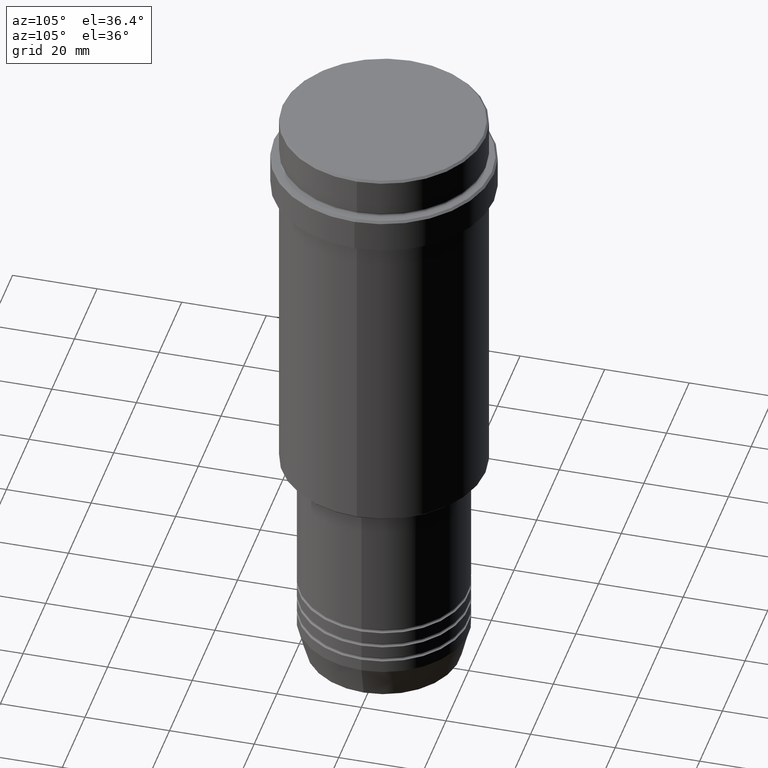
[diagram: clean part render]
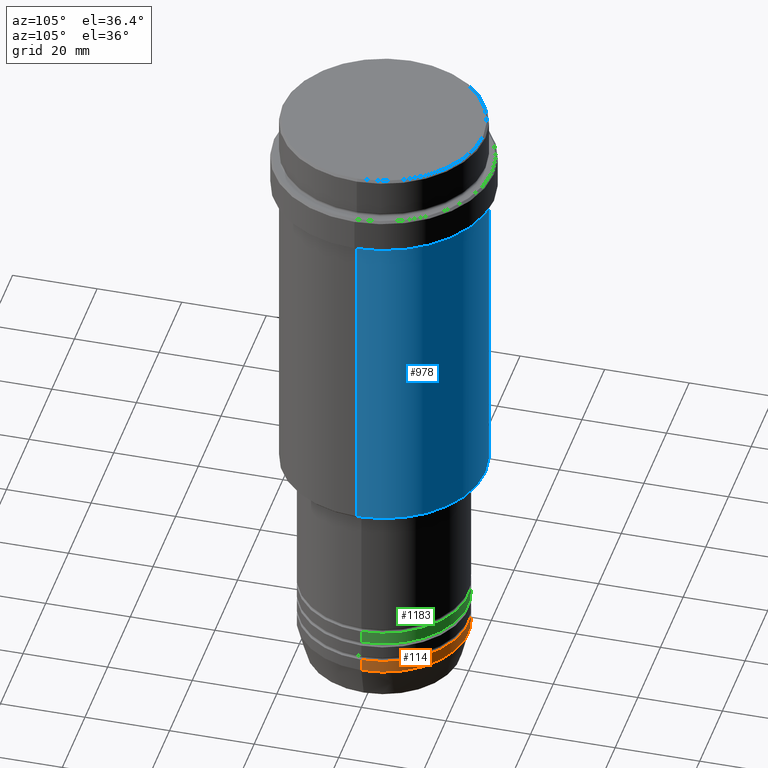
[diagram: same view with three faces highlighted in distinct colors, each labeled with its STEP entity id]
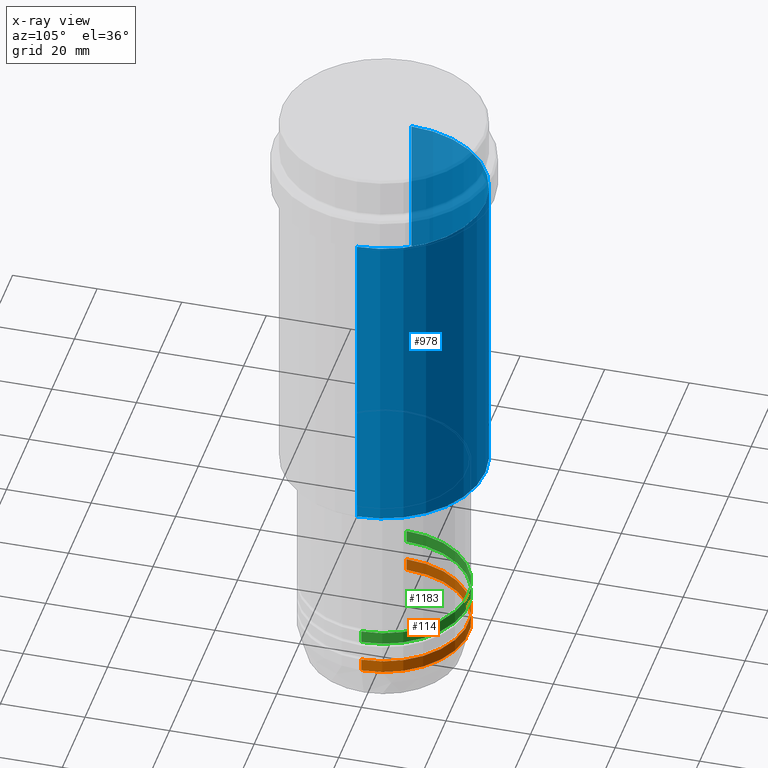
[diagram: x-ray of the same camera — body ghosted, the three highlighted faces saturated]
A machine part, auxiliary view with three faces highlighted in distinct colors.
The next image is the same camera in x-ray (body ghosted, the three faces saturated) — at least one of them is partly hidden behind the body in this view.
Their STEP definitions:

[orange] entity #114 — the highlighted cylindrical surface (partial cylindrical patch) has radius 20 mm, axis along (-0, -0, 1).
#63 = FACE_OUTER_BOUND ( 'NONE', #511, .T. ) ;
#97 = DIRECTION ( 'NONE',  ( 1.000000000000000000, 0.000000000000000000, 0.000000000000000000 ) ) ;
#114 = ADVANCED_FACE ( 'NONE', ( #63 ), #905, .T. ) ;
#163 = ORIENTED_EDGE ( 'NONE', *, *, #1003, .F. ) ;
#202 = AXIS2_PLACEMENT_3D ( 'NONE', #1005, #234, #443 ) ;
#234 = DIRECTION ( 'NONE',  ( -0.000000000000000000, -0.000000000000000000, 1.000000000000000000 ) ) ;
#248 = VECTOR ( 'NONE', #1225, 1000.000000000000000 ) ;
#277 = CARTESIAN_POINT ( 'NONE',  ( -20.00000000000000000, 2.449293598294706513E-15, 0.000000000000000000 ) ) ;
#280 = CARTESIAN_POINT ( 'NONE',  ( 0.000000000000000000, 0.000000000000000000, 0.000000000000000000 ) ) ;
#287 = VERTEX_POINT ( 'NONE', #1355 ) ;
#300 = DIRECTION ( 'NONE',  ( -0.000000000000000000, -0.000000000000000000, 1.000000000000000000 ) ) ;
#358 = VECTOR ( 'NONE', #300, 1000.000000000000000 ) ;
#418 = ORIENTED_EDGE ( 'NONE', *, *, #1098, .T. ) ;
#443 = DIRECTION ( 'NONE',  ( 1.000000000000000000, 0.000000000000000000, 0.000000000000000000 ) ) ;
#453 = AXIS2_PLACEMENT_3D ( 'NONE', #280, #592, #706 ) ;
#456 = CARTESIAN_POINT ( 'NONE',  ( -20.00000000000000000, 2.449293598294706513E-15, -139.0000000000000000 ) ) ;
#466 = VERTEX_POINT ( 'NONE', #725 ) ;
#511 = EDGE_LOOP ( 'NONE', ( #857, #418, #1000, #163 ) ) ;
#592 = DIRECTION ( 'NONE',  ( -0.000000000000000000, -0.000000000000000000, 1.000000000000000000 ) ) ;
#593 = VERTEX_POINT ( 'NONE', #456 ) ;
#706 = DIRECTION ( 'NONE',  ( 1.000000000000000000, 0.000000000000000000, 0.000000000000000000 ) ) ;
#725 = CARTESIAN_POINT ( 'NONE',  ( 20.00000000000000000, 0.000000000000000000, -142.0000000000000284 ) ) ;
#762 = DIRECTION ( 'NONE',  ( -0.000000000000000000, -0.000000000000000000, 1.000000000000000000 ) ) ;
#786 = CIRCLE ( 'NONE', #1321, 20.00000000000000000 ) ;
#857 = ORIENTED_EDGE ( 'NONE', *, *, #1401, .T. ) ;
#888 = LINE ( 'NONE', #1349, #248 ) ;
#905 = CYLINDRICAL_SURFACE ( 'NONE', #453, 20.00000000000000000 ) ;
#970 = EDGE_CURVE ( 'NONE', #287, #593, #786, .T. ) ;
#992 = CIRCLE ( 'NONE', #202, 20.00000000000000000 ) ;
#1000 = ORIENTED_EDGE ( 'NONE', *, *, #970, .F. ) ;
#1003 = EDGE_CURVE ( 'NONE', #466, #287, #888, .T. ) ;
#1005 = CARTESIAN_POINT ( 'NONE',  ( 0.000000000000000000, 0.000000000000000000, -142.0000000000000284 ) ) ;
#1098 = EDGE_CURVE ( 'NONE', #1107, #593, #1158, .T. ) ;
#1107 = VERTEX_POINT ( 'NONE', #1142 ) ;
#1142 = CARTESIAN_POINT ( 'NONE',  ( -20.00000000000000000, 2.449293598294706513E-15, -142.0000000000000284 ) ) ;
#1158 = LINE ( 'NONE', #277, #358 ) ;
#1197 = CARTESIAN_POINT ( 'NONE',  ( 0.000000000000000000, 0.000000000000000000, -139.0000000000000000 ) ) ;
#1225 = DIRECTION ( 'NONE',  ( -0.000000000000000000, -0.000000000000000000, 1.000000000000000000 ) ) ;
#1321 = AXIS2_PLACEMENT_3D ( 'NONE', #1197, #762, #97 ) ;
#1349 = CARTESIAN_POINT ( 'NONE',  ( 20.00000000000000000, 0.000000000000000000, 0.000000000000000000 ) ) ;
#1355 = CARTESIAN_POINT ( 'NONE',  ( 20.00000000000000000, 0.000000000000000000, -139.0000000000000000 ) ) ;
#1401 = EDGE_CURVE ( 'NONE', #466, #1107, #992, .T. ) ;

[blue] entity #978 — the highlighted cylindrical surface (partial cylindrical patch) has radius 24 mm, axis along (-0, -0, 1).
#1 = DIRECTION ( 'NONE',  ( -0.000000000000000000, -0.000000000000000000, 1.000000000000000000 ) ) ;
#8 = FACE_OUTER_BOUND ( 'NONE', #1394, .T. ) ;
#60 = VECTOR ( 'NONE', #1335, 1000.000000000000000 ) ;
#88 = AXIS2_PLACEMENT_3D ( 'NONE', #747, #339, #1188 ) ;
#140 = CIRCLE ( 'NONE', #88, 23.99999999999999289 ) ;
#160 = EDGE_CURVE ( 'NONE', #1168, #1066, #698, .T. ) ;
#185 = ORIENTED_EDGE ( 'NONE', *, *, #310, .T. ) ;
#213 = DIRECTION ( 'NONE',  ( 1.000000000000000000, 0.000000000000000000, 0.000000000000000000 ) ) ;
#232 = LINE ( 'NONE', #1104, #939 ) ;
#254 = CARTESIAN_POINT ( 'NONE',  ( 23.99999999999999289, 0.000000000000000000, -95.49999999999998579 ) ) ;
#310 = EDGE_CURVE ( 'NONE', #686, #1066, #232, .T. ) ;
#339 = DIRECTION ( 'NONE',  ( -0.000000000000000000, -0.000000000000000000, 1.000000000000000000 ) ) ;
#346 = CARTESIAN_POINT ( 'NONE',  ( 23.99999999999999289, 0.000000000000000000, 0.000000000000000000 ) ) ;
#530 = CYLINDRICAL_SURFACE ( 'NONE', #1058, 23.99999999999999289 ) ;
#533 = ORIENTED_EDGE ( 'NONE', *, *, #751, .F. ) ;
#575 = ORIENTED_EDGE ( 'NONE', *, *, #1310, .T. ) ;
#686 = VERTEX_POINT ( 'NONE', #1074 ) ;
#698 = CIRCLE ( 'NONE', #1179, 23.99999999999998579 ) ;
#747 = CARTESIAN_POINT ( 'NONE',  ( 0.000000000000000000, 0.000000000000000000, -95.49999999999998579 ) ) ;
#751 = EDGE_CURVE ( 'NONE', #793, #1168, #887, .T. ) ;
#793 = VERTEX_POINT ( 'NONE', #254 ) ;
#842 = DIRECTION ( 'NONE',  ( -0.000000000000000000, -0.000000000000000000, 1.000000000000000000 ) ) ;
#887 = LINE ( 'NONE', #346, #60 ) ;
#939 = VECTOR ( 'NONE', #1, 1000.000000000000000 ) ;
#978 = ADVANCED_FACE ( 'NONE', ( #8 ), #530, .T. ) ;
#1058 = AXIS2_PLACEMENT_3D ( 'NONE', #1299, #1207, #213 ) ;
#1066 = VERTEX_POINT ( 'NONE', #1245 ) ;
#1074 = CARTESIAN_POINT ( 'NONE',  ( -23.99999999999999289, 2.939152317953647106E-15, -95.49999999999998579 ) ) ;
#1104 = CARTESIAN_POINT ( 'NONE',  ( -23.99999999999999289, 2.939152317953647106E-15, 0.000000000000000000 ) ) ;
#1147 = ORIENTED_EDGE ( 'NONE', *, *, #160, .F. ) ;
#1168 = VERTEX_POINT ( 'NONE', #1274 ) ;
#1179 = AXIS2_PLACEMENT_3D ( 'NONE', #1300, #842, #1397 ) ;
#1188 = DIRECTION ( 'NONE',  ( -1.000000000000000000, 0.000000000000000000, 0.000000000000000000 ) ) ;
#1207 = DIRECTION ( 'NONE',  ( -0.000000000000000000, -0.000000000000000000, 1.000000000000000000 ) ) ;
#1245 = CARTESIAN_POINT ( 'NONE',  ( -23.99999999999998579, 2.939152317953646711E-15, -19.00000000000000711 ) ) ;
#1274 = CARTESIAN_POINT ( 'NONE',  ( 23.99999999999998579, 0.000000000000000000, -19.00000000000000711 ) ) ;
#1299 = CARTESIAN_POINT ( 'NONE',  ( 0.000000000000000000, 0.000000000000000000, 0.000000000000000000 ) ) ;
#1300 = CARTESIAN_POINT ( 'NONE',  ( 0.000000000000000000, 0.000000000000000000, -19.00000000000000711 ) ) ;
#1310 = EDGE_CURVE ( 'NONE', #793, #686, #140, .T. ) ;
#1335 = DIRECTION ( 'NONE',  ( -0.000000000000000000, -0.000000000000000000, 1.000000000000000000 ) ) ;
#1394 = EDGE_LOOP ( 'NONE', ( #575, #185, #1147, #533 ) ) ;
#1397 = DIRECTION ( 'NONE',  ( 1.000000000000000000, 0.000000000000000000, 0.000000000000000000 ) ) ;

[green] entity #1183 — the highlighted cylindrical surface (partial cylindrical patch) has radius 20 mm, axis along (-0, -0, 1).
#17 = CARTESIAN_POINT ( 'NONE',  ( 0.000000000000000000, 0.000000000000000000, -133.9999999999998863 ) ) ;
#67 = DIRECTION ( 'NONE',  ( 1.000000000000000000, 0.000000000000000000, 0.000000000000000000 ) ) ;
#130 = ORIENTED_EDGE ( 'NONE', *, *, #726, .F. ) ;
#146 = CARTESIAN_POINT ( 'NONE',  ( 20.00000000000000000, 0.000000000000000000, 0.000000000000000000 ) ) ;
#151 = VERTEX_POINT ( 'NONE', #435 ) ;
#255 = EDGE_CURVE ( 'NONE', #151, #350, #405, .T. ) ;
#303 = ORIENTED_EDGE ( 'NONE', *, *, #255, .F. ) ;
#350 = VERTEX_POINT ( 'NONE', #1255 ) ;
#357 = CARTESIAN_POINT ( 'NONE',  ( -20.00000000000000000, 2.449293598294706513E-15, -133.9999999999998863 ) ) ;
#405 = CIRCLE ( 'NONE', #587, 20.00000000000000000 ) ;
#431 = VERTEX_POINT ( 'NONE', #441 ) ;
#435 = CARTESIAN_POINT ( 'NONE',  ( 20.00000000000000000, 0.000000000000000000, -130.9999999999998863 ) ) ;
#441 = CARTESIAN_POINT ( 'NONE',  ( 20.00000000000000000, 0.000000000000000000, -133.9999999999998863 ) ) ;
#461 = LINE ( 'NONE', #146, #785 ) ;
#522 = DIRECTION ( 'NONE',  ( -0.000000000000000000, -0.000000000000000000, 1.000000000000000000 ) ) ;
#587 = AXIS2_PLACEMENT_3D ( 'NONE', #633, #727, #1062 ) ;
#608 = DIRECTION ( 'NONE',  ( -0.000000000000000000, -0.000000000000000000, 1.000000000000000000 ) ) ;
#633 = CARTESIAN_POINT ( 'NONE',  ( 0.000000000000000000, 0.000000000000000000, -130.9999999999998863 ) ) ;
#641 = CARTESIAN_POINT ( 'NONE',  ( -20.00000000000000000, 2.449293598294706513E-15, 0.000000000000000000 ) ) ;
#659 = ORIENTED_EDGE ( 'NONE', *, *, #1076, .T. ) ;
#726 = EDGE_CURVE ( 'NONE', #431, #151, #461, .T. ) ;
#727 = DIRECTION ( 'NONE',  ( -0.000000000000000000, -0.000000000000000000, 1.000000000000000000 ) ) ;
#729 = EDGE_LOOP ( 'NONE', ( #659, #1272, #303, #130 ) ) ;
#758 = LINE ( 'NONE', #641, #1344 ) ;
#785 = VECTOR ( 'NONE', #1127, 1000.000000000000000 ) ;
#799 = VERTEX_POINT ( 'NONE', #357 ) ;
#811 = CYLINDRICAL_SURFACE ( 'NONE', #849, 20.00000000000000000 ) ;
#849 = AXIS2_PLACEMENT_3D ( 'NONE', #1260, #608, #67 ) ;
#882 = DIRECTION ( 'NONE',  ( -0.000000000000000000, -0.000000000000000000, 1.000000000000000000 ) ) ;
#1062 = DIRECTION ( 'NONE',  ( 1.000000000000000000, 0.000000000000000000, 0.000000000000000000 ) ) ;
#1076 = EDGE_CURVE ( 'NONE', #431, #799, #1407, .T. ) ;
#1112 = AXIS2_PLACEMENT_3D ( 'NONE', #17, #882, #1330 ) ;
#1127 = DIRECTION ( 'NONE',  ( -0.000000000000000000, -0.000000000000000000, 1.000000000000000000 ) ) ;
#1169 = FACE_OUTER_BOUND ( 'NONE', #729, .T. ) ;
#1183 = ADVANCED_FACE ( 'NONE', ( #1169 ), #811, .T. ) ;
#1255 = CARTESIAN_POINT ( 'NONE',  ( -20.00000000000000000, 2.449293598294706513E-15, -130.9999999999998863 ) ) ;
#1260 = CARTESIAN_POINT ( 'NONE',  ( 0.000000000000000000, 0.000000000000000000, 0.000000000000000000 ) ) ;
#1272 = ORIENTED_EDGE ( 'NONE', *, *, #1276, .T. ) ;
#1276 = EDGE_CURVE ( 'NONE', #799, #350, #758, .T. ) ;
#1330 = DIRECTION ( 'NONE',  ( 1.000000000000000000, 0.000000000000000000, 0.000000000000000000 ) ) ;
#1344 = VECTOR ( 'NONE', #522, 1000.000000000000000 ) ;
#1407 = CIRCLE ( 'NONE', #1112, 20.00000000000000000 ) ;